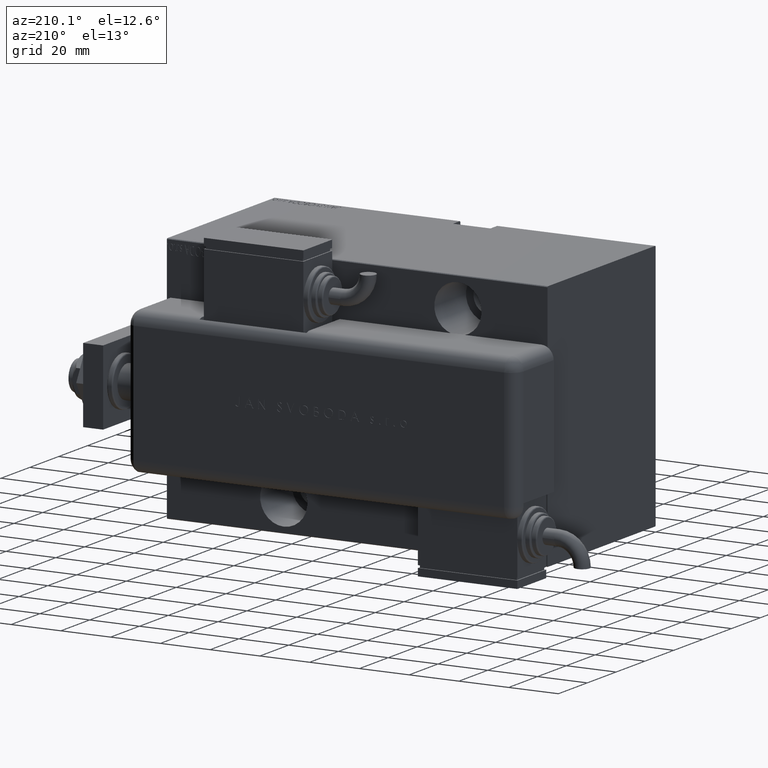
[diagram: clean part render]
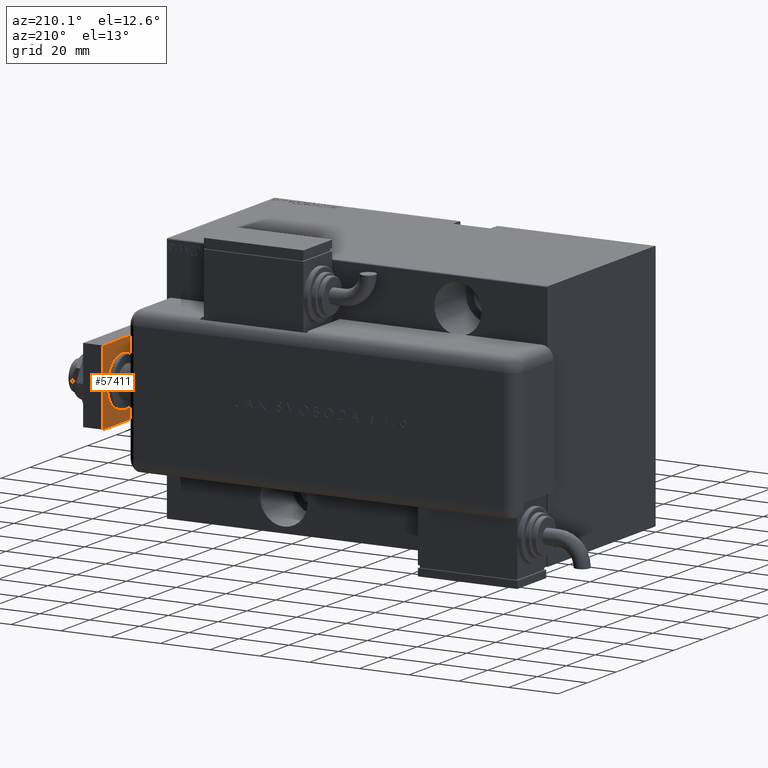
[diagram: same view with one face highlighted and labeled with its STEP entity id]
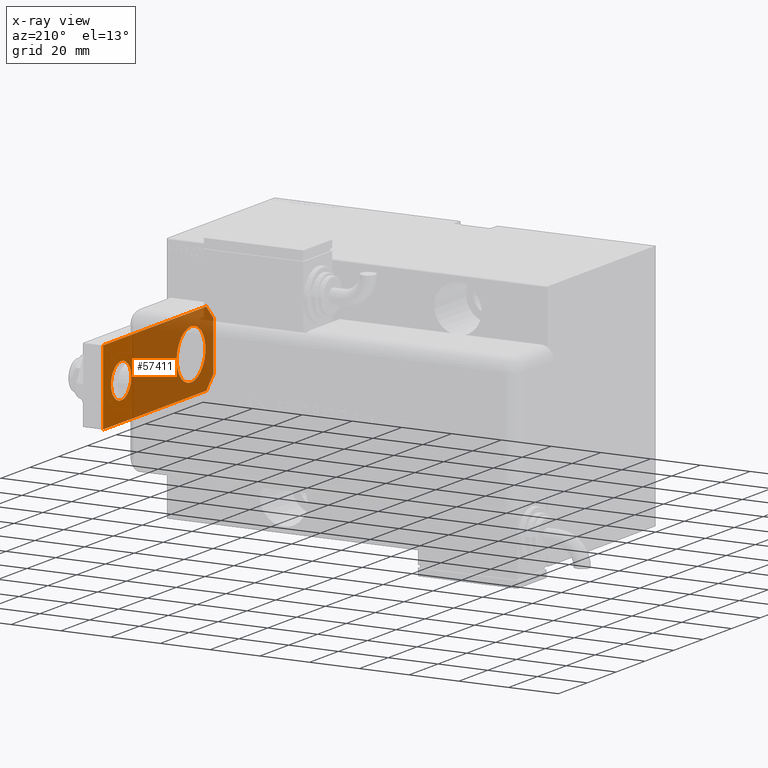
[diagram: x-ray of the same camera — body ghosted, the highlighted face saturated]
A machine part, auxiliary view. The second image highlights one B-rep face of the part: STEP entity #57411.
The next image is the same camera in x-ray: the body ghosted, the highlighted face saturated — about 75% of this face is hidden behind the body in this view.
In plain terms, the highlighted planar face has unit normal (-1, 0, 0).
Its self-contained STEP definition (entity closure, byte-faithful):
#914 = EDGE_CURVE ( 'NONE', #15279, #2223, #29788, .T. ) ;
#2223 = VERTEX_POINT ( 'NONE', #3682 ) ;
#2353 = VERTEX_POINT ( 'NONE', #33916 ) ;
#2600 = EDGE_CURVE ( 'NONE', #23517, #44047, #9905, .T. ) ;
#2639 = CARTESIAN_POINT ( 'NONE',  ( -14.99999999999999822, 76.50000000000000000, 8.000000000000000000 ) ) ;
#2929 = DIRECTION ( 'NONE',  ( 0.7071067811865460184, -0.7071067811865489050, 0.000000000000000000 ) ) ;
#3539 = ORIENTED_EDGE ( 'NONE', *, *, #2600, .F. ) ;
#3682 = CARTESIAN_POINT ( 'NONE',  ( 7.000000000000000000, 64.00000000000000000, 8.000000000000000000 ) ) ;
#4195 = ORIENTED_EDGE ( 'NONE', *, *, #55602, .T. ) ;
#4226 = PLANE ( 'NONE',  #45926 ) ;
#4607 = LINE ( 'NONE', #17681, #57157 ) ;
#5580 = CARTESIAN_POINT ( 'NONE',  ( 9.999999999999982236, 9.629649721936179265E-32, 8.000000000000000000 ) ) ;
#5602 = EDGE_CURVE ( 'NONE', #2353, #35683, #47723, .T. ) ;
#5629 = CARTESIAN_POINT ( 'NONE',  ( -15.00000000000000888, 9.629649721936179265E-32, 8.000000000000000000 ) ) ;
#5969 = VERTEX_POINT ( 'NONE', #15647 ) ;
#6776 = DIRECTION ( 'NONE',  ( 0.000000000000000000, 0.000000000000000000, 1.000000000000000000 ) ) ;
#7355 = LINE ( 'NONE', #16844, #7817 ) ;
#7360 = ORIENTED_EDGE ( 'NONE', *, *, #26049, .F. ) ;
#7817 = VECTOR ( 'NONE', #16248, 1000.000000000000000 ) ;
#8531 = AXIS2_PLACEMENT_3D ( 'NONE', #28457, #54537, #14203 ) ;
#8578 = DIRECTION ( 'NONE',  ( 0.7071067811865489050, 0.7071067811865460184, -0.000000000000000000 ) ) ;
#8892 = VECTOR ( 'NONE', #45966, 1000.000000000000000 ) ;
#9863 = AXIS2_PLACEMENT_3D ( 'NONE', #35796, #53280, #53585 ) ;
#9905 = CIRCLE ( 'NONE', #45874, 10.00000000000000711 ) ;
#10435 = CARTESIAN_POINT ( 'NONE',  ( 10.00000000000000711, 15.50000000000000178, 8.000000000000000000 ) ) ;
#11903 = VERTEX_POINT ( 'NONE', #5580 ) ;
#12351 = EDGE_LOOP ( 'NONE', ( #3539, #7360 ) ) ;
#14203 = DIRECTION ( 'NONE',  ( 1.000000000000000000, 0.000000000000000000, 0.000000000000000000 ) ) ;
#15279 = VERTEX_POINT ( 'NONE', #52345 ) ;
#15647 = CARTESIAN_POINT ( 'NONE',  ( -10.00000000000001066, 9.629649721936179265E-32, 8.000000000000000000 ) ) ;
#15738 = ORIENTED_EDGE ( 'NONE', *, *, #54886, .T. ) ;
#15989 = ORIENTED_EDGE ( 'NONE', *, *, #52108, .T. ) ;
#16248 = DIRECTION ( 'NONE',  ( -1.000000000000000000, 0.000000000000000000, 0.000000000000000000 ) ) ;
#16844 = CARTESIAN_POINT ( 'NONE',  ( 15.00000000000000355, 76.50000000000000000, 8.000000000000000000 ) ) ;
#17681 = CARTESIAN_POINT ( 'NONE',  ( 15.00000000000000888, 9.629649721936179265E-32, 8.000000000000000000 ) ) ;
#17767 = LINE ( 'NONE', #26396, #18261 ) ;
#18193 = EDGE_CURVE ( 'NONE', #38622, #2353, #7355, .T. ) ;
#18261 = VECTOR ( 'NONE', #2929, 1000.000000000000114 ) ;
#18476 = FACE_BOUND ( 'NONE', #12351, .T. ) ;
#19053 = FACE_OUTER_BOUND ( 'NONE', #47564, .T. ) ;
#19578 = LINE ( 'NONE', #5629, #8892 ) ;
#20211 = EDGE_CURVE ( 'NONE', #2223, #15279, #32190, .T. ) ;
#20218 = CARTESIAN_POINT ( 'NONE',  ( -15.00000000000000888, 5.000000000000018652, 8.000000000000000000 ) ) ;
#20730 = DIRECTION ( 'NONE',  ( -1.360567432138672328E-16, -1.000000000000000000, 0.000000000000000000 ) ) ;
#22643 = DIRECTION ( 'NONE',  ( -0.000000000000000000, 0.000000000000000000, 1.000000000000000000 ) ) ;
#23517 = VERTEX_POINT ( 'NONE', #40904 ) ;
#24896 = DIRECTION ( 'NONE',  ( 1.000000000000000000, 0.000000000000000000, 0.000000000000000000 ) ) ;
#25540 = AXIS2_PLACEMENT_3D ( 'NONE', #47402, #6776, #24896 ) ;
#26049 = EDGE_CURVE ( 'NONE', #44047, #23517, #43582, .T. ) ;
#26396 = CARTESIAN_POINT ( 'NONE',  ( -5.000000000000026645, -5.000000000000005329, 8.000000000000000000 ) ) ;
#27097 = ORIENTED_EDGE ( 'NONE', *, *, #914, .F. ) ;
#28457 = CARTESIAN_POINT ( 'NONE',  ( 0.000000000000000000, 15.50000000000000000, 8.000000000000000000 ) ) ;
#29788 = CIRCLE ( 'NONE', #9863, 7.000000000000000000 ) ;
#30569 = LINE ( 'NONE', #48625, #31563 ) ;
#31202 = EDGE_CURVE ( 'NONE', #11903, #57234, #30569, .T. ) ;
#31248 = FACE_BOUND ( 'NONE', #56361, .T. ) ;
#31563 = VECTOR ( 'NONE', #8578, 1000.000000000000114 ) ;
#32190 = CIRCLE ( 'NONE', #25540, 7.000000000000000000 ) ;
#33916 = CARTESIAN_POINT ( 'NONE',  ( -14.99999999999999822, 76.50000000000000000, 8.000000000000000000 ) ) ;
#33943 = ORIENTED_EDGE ( 'NONE', *, *, #5602, .T. ) ;
#35683 = VERTEX_POINT ( 'NONE', #20218 ) ;
#35796 = CARTESIAN_POINT ( 'NONE',  ( 1.963948872468190046E-17, 64.00000000000000000, 8.000000000000000000 ) ) ;
#36587 = DIRECTION ( 'NONE',  ( 1.000000000000000000, 0.000000000000000000, 0.000000000000000000 ) ) ;
#38589 = DIRECTION ( 'NONE',  ( 0.000000000000000000, 0.000000000000000000, 1.000000000000000000 ) ) ;
#38622 = VERTEX_POINT ( 'NONE', #39758 ) ;
#39758 = CARTESIAN_POINT ( 'NONE',  ( 15.00000000000000355, 76.50000000000000000, 8.000000000000000000 ) ) ;
#40904 = CARTESIAN_POINT ( 'NONE',  ( -10.00000000000000711, 15.50000000000000000, 8.000000000000000000 ) ) ;
#43412 = CARTESIAN_POINT ( 'NONE',  ( 15.00000000000000888, 5.000000000000004441, 8.000000000000000000 ) ) ;
#43582 = CIRCLE ( 'NONE', #8531, 10.00000000000000711 ) ;
#44047 = VERTEX_POINT ( 'NONE', #10435 ) ;
#45874 = AXIS2_PLACEMENT_3D ( 'NONE', #56646, #38589, #52196 ) ;
#45926 = AXIS2_PLACEMENT_3D ( 'NONE', #49903, #22643, #36587 ) ;
#45966 = DIRECTION ( 'NONE',  ( 1.000000000000000000, 0.000000000000000000, 0.000000000000000000 ) ) ;
#46386 = ORIENTED_EDGE ( 'NONE', *, *, #18193, .T. ) ;
#46790 = ORIENTED_EDGE ( 'NONE', *, *, #20211, .F. ) ;
#47402 = CARTESIAN_POINT ( 'NONE',  ( 1.963948872468190046E-17, 64.00000000000000000, 8.000000000000000000 ) ) ;
#47564 = EDGE_LOOP ( 'NONE', ( #33943, #15989, #4195, #50798, #15738, #46386 ) ) ;
#47723 = LINE ( 'NONE', #2639, #51724 ) ;
#48625 = CARTESIAN_POINT ( 'NONE',  ( 4.999999999999970690, -4.999999999999991118, 8.000000000000000000 ) ) ;
#49394 = DIRECTION ( 'NONE',  ( -6.802837160693361638E-17, 1.000000000000000000, 0.000000000000000000 ) ) ;
#49903 = CARTESIAN_POINT ( 'NONE',  ( 0.000000000000000000, 0.000000000000000000, 8.000000000000000000 ) ) ;
#50798 = ORIENTED_EDGE ( 'NONE', *, *, #31202, .T. ) ;
#51724 = VECTOR ( 'NONE', #20730, 1000.000000000000000 ) ;
#52108 = EDGE_CURVE ( 'NONE', #35683, #5969, #17767, .T. ) ;
#52196 = DIRECTION ( 'NONE',  ( 1.000000000000000000, 0.000000000000000000, 0.000000000000000000 ) ) ;
#52345 = CARTESIAN_POINT ( 'NONE',  ( -7.000000000000000000, 64.00000000000000000, 8.000000000000000000 ) ) ;
#53280 = DIRECTION ( 'NONE',  ( 0.000000000000000000, 0.000000000000000000, 1.000000000000000000 ) ) ;
#53585 = DIRECTION ( 'NONE',  ( 1.000000000000000000, 0.000000000000000000, 0.000000000000000000 ) ) ;
#54537 = DIRECTION ( 'NONE',  ( 0.000000000000000000, 0.000000000000000000, 1.000000000000000000 ) ) ;
#54886 = EDGE_CURVE ( 'NONE', #57234, #38622, #4607, .T. ) ;
#55602 = EDGE_CURVE ( 'NONE', #5969, #11903, #19578, .T. ) ;
#56361 = EDGE_LOOP ( 'NONE', ( #27097, #46790 ) ) ;
#56646 = CARTESIAN_POINT ( 'NONE',  ( 0.000000000000000000, 15.50000000000000000, 8.000000000000000000 ) ) ;
#57157 = VECTOR ( 'NONE', #49394, 1000.000000000000000 ) ;
#57234 = VERTEX_POINT ( 'NONE', #43412 ) ;
#57411 = ADVANCED_FACE ( 'NONE', ( #31248, #19053, #18476 ), #4226, .T. ) ;